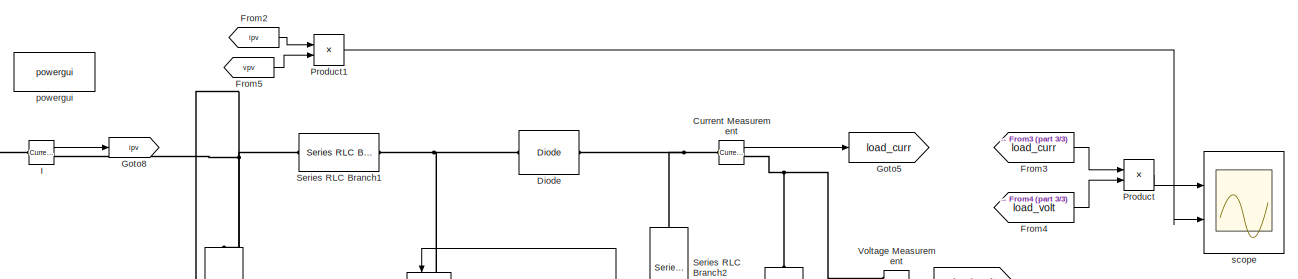
[diagram: root canvas - part 1/3, top center region]
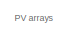
[diagram: root canvas - part 2/3, top left region]
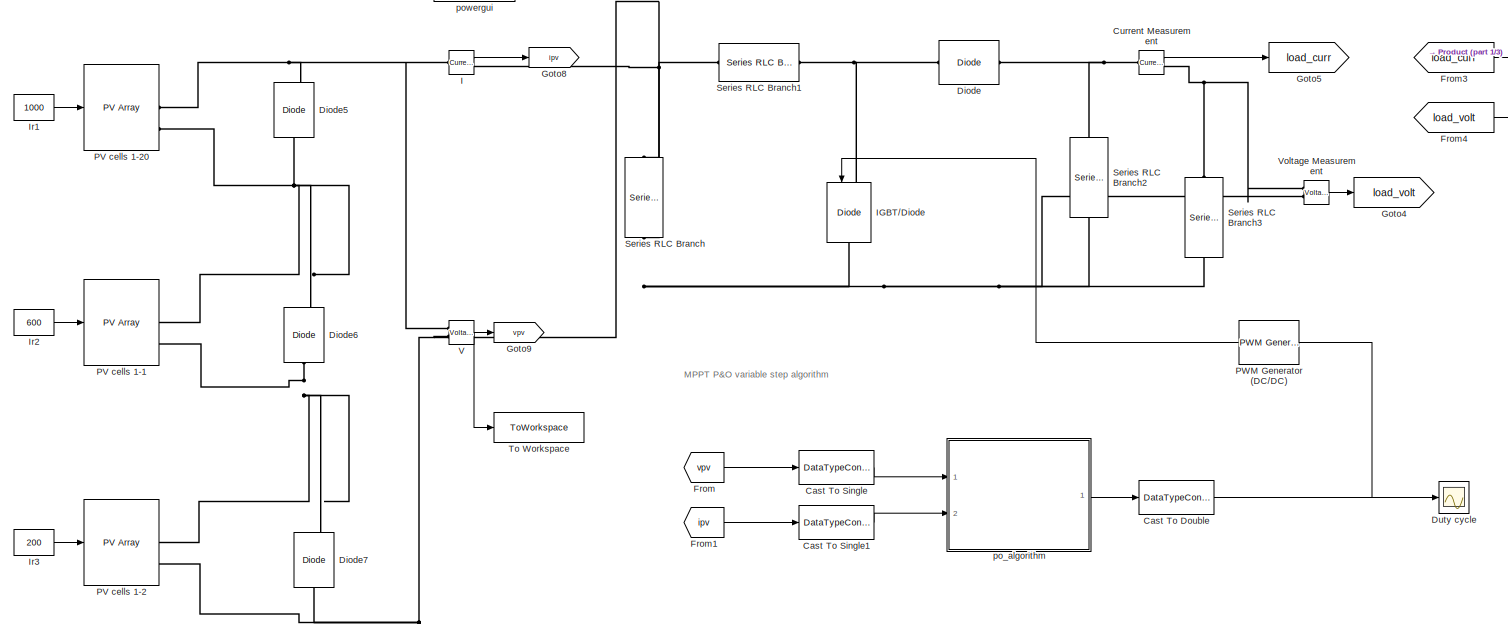
[diagram: root canvas - part 3/3, most of the canvas]
MODEL slx_27cc3cabecec
KIND model
CONFIG AbsTol = auto
CONFIG EnableMultiTasking = on
CONFIG FixedStep = 1e-6
CONFIG MaxStep = auto
CONFIG MinStep = auto
CONFIG RelTol = 1e-3
CONFIG SampleTimeConstraint = Unconstrained
CONFIG SolverName = FixedStepAuto
CONFIG StartTime = 0.0
CONFIG StopTime = 0.4
BLOCK [DataTypeConversion] Cast To Double
  OutDataTypeStr = double
  RndMeth = Floor
  SaturateOnIntegerOverflow = off
BLOCK [DataTypeConversion] Cast To Single
  OutDataTypeStr = single
  RndMeth = Floor
  SaturateOnIntegerOverflow = off
BLOCK [DataTypeConversion] Cast To Single1
  OutDataTypeStr = single
  RndMeth = Floor
  SaturateOnIntegerOverflow = off
BLOCK [Reference] Current Measurement  REF=spsCurrentMeasurementLib/Current Measurement
  Ports = [0, 1, 0, 0, 0, 1, 1]
  SourceBlock = spsCurrentMeasurementLib/Current Measurement
  SourceProductBaseCode = PS
  SourceType = Current Measurement
  UserDataPersistent = on
BLOCK [Reference] Diode  REF=spsDiodeLib/Diode
  Ports = [0, 0, 0, 0, 0, 1, 1]
  SourceBlock = spsDiodeLib/Diode
  SourceProductBaseCode = PS
  SourceType = Diode
BLOCK [Reference] Diode5  REF=spsDiodeLib/Diode
  NameLocation = right
  Ports = [0, 1, 0, 0, 0, 1, 1]
  SourceBlock = spsDiodeLib/Diode
  SourceProductBaseCode = PS
  SourceType = Diode
BLOCK [Reference] Diode6  REF=spsDiodeLib/Diode
  NameLocation = right
  Ports = [0, 1, 0, 0, 0, 1, 1]
  SourceBlock = spsDiodeLib/Diode
  SourceProductBaseCode = PS
  SourceType = Diode
BLOCK [Reference] Diode7  REF=spsDiodeLib/Diode
  NameLocation = right
  Ports = [0, 1, 0, 0, 0, 1, 1]
  SourceBlock = spsDiodeLib/Diode
  SourceProductBaseCode = PS
  SourceType = Diode
BLOCK [Scope] Duty cycle
  Floating = off
  NumInputPorts = 1
  Ports = [1]
  ScopeSpecificationString = Simulink.scopes.TimeScopeBlockCfg('CurrentConfiguration', extmgr.ConfigurationSet(extmgr.Configuration('Core','General UI',true),extmgr.Configuration('Core','Source UI',true),extmgr.Configuration('Sources','WiredSimulink',true),extmgr.Configuration('Visuals','Time Domain',true,'SerializedDisplays',{struct('MinYLimReal','0.33922','MaxYLimReal','0.94366','YLabelReal','','MinYLimMag','0.33922','MaxYL...<+1523ch>
BLOCK [From] From
  GotoTag = vpv
BLOCK [From] From1
  GotoTag = ipv
BLOCK [From] From2
  GotoTag = ipv
BLOCK [From] From3
  GotoTag = load_curr
BLOCK [From] From4
  GotoTag = load_volt
BLOCK [From] From5
  GotoTag = vpv
BLOCK [Goto] Goto4
  GotoTag = load_volt
BLOCK [Goto] Goto5
  GotoTag = load_curr
BLOCK [Goto] Goto8
  GotoTag = ipv
BLOCK [Goto] Goto9
  GotoTag = vpv
BLOCK [Reference] I  REF=spsCurrentMeasurementLib/Current Measurement
  Ports = [0, 1, 0, 0, 0, 1, 1]
  SourceBlock = spsCurrentMeasurementLib/Current Measurement
  SourceProductBaseCode = PS
  SourceType = Current Measurement
  UserDataPersistent = on
BLOCK [Reference] IGBT//Diode  REF=spsIGBTDiodeLib/IGBT//Diode
  NameLocation = left
  Ports = [1, 0, 0, 0, 0, 1, 1]
  SourceBlock = spsIGBTDiodeLib/IGBT//Diode
  SourceProductBaseCode = PS
  SourceType = IGBT/Diode
BLOCK [Constant] Ir1
  NameLocation = top
  Value = 1000
BLOCK [Constant] Ir2
  NameLocation = top
  Value = 600
BLOCK [Constant] Ir3
  NameLocation = top
  Value = 200
BLOCK [Reference] PV cells 1-1  REF=spsPVArrayLib/PV Array
  AttributesFormatString = (%<RobustCellTemperature> deg.C)
  Ports = [1, 1, 0, 0, 0, 0, 2]
  SourceBlock = spsPVArrayLib/PV Array
  SourceProductBaseCode = PS
  SourceType = PV array
BLOCK [Reference] PV cells 1-2  REF=spsPVArrayLib/PV Array
  AttributesFormatString = (%<RobustCellTemperature> deg.C)
  Ports = [1, 1, 0, 0, 0, 0, 2]
  SourceBlock = spsPVArrayLib/PV Array
  SourceProductBaseCode = PS
  SourceType = PV array
BLOCK [Reference] PV cells 1-20  REF=spsPVArrayLib/PV Array
  AttributesFormatString = (%<RobustCellTemperature> deg.C)
  Ports = [1, 1, 0, 0, 0, 0, 2]
  SourceBlock = spsPVArrayLib/PV Array
  SourceProductBaseCode = PS
  SourceType = PV array
BLOCK [Reference] PWM Generator (DC//DC)  REF=spsPWMGeneratorDCDCLib/PWM Generator
(DC-DC)
  NameLocation = top
  Ports = [1, 1]
  SourceBlock = spsPWMGeneratorDCDCLib/PWM Generator\n(DC-DC)
  SourceProductBaseCode = PS
  SourceType = PWM Generator (DC-DC)
BLOCK [Product] Product
  Ports = [2, 1]
BLOCK [Product] Product1
  Ports = [2, 1]
BLOCK [Reference] Series RLC Branch  REF=spsSeriesRLCBranchLib/Series RLC Branch
  NameLocation = left
  Ports = [0, 0, 0, 0, 0, 1, 1]
  SourceBlock = spsSeriesRLCBranchLib/Series RLC Branch
  SourceProductBaseCode = PS
  SourceType = Series RLC Branch
BLOCK [Reference] Series RLC Branch1  REF=spsSeriesRLCBranchLib/Series RLC Branch
  NameLocation = top
  Ports = [0, 0, 0, 0, 0, 1, 1]
  SourceBlock = spsSeriesRLCBranchLib/Series RLC Branch
  SourceProductBaseCode = PS
  SourceType = Series RLC Branch
BLOCK [Reference] Series RLC Branch2  REF=spsSeriesRLCBranchLib/Series RLC Branch
  NameLocation = left
  Ports = [0, 0, 0, 0, 0, 1, 1]
  SourceBlock = spsSeriesRLCBranchLib/Series RLC Branch
  SourceProductBaseCode = PS
  SourceType = Series RLC Branch
BLOCK [Reference] Series RLC Branch3  REF=spsSeriesRLCBranchLib/Series RLC Branch
  NameLocation = right
  Ports = [0, 0, 0, 0, 0, 1, 1]
  SourceBlock = spsSeriesRLCBranchLib/Series RLC Branch
  SourceProductBaseCode = PS
  SourceType = Series RLC Branch
BLOCK [ToWorkspace] To Workspace
  FixptAsFi = on
  MaxDataPoints = inf
  Ports = [1]
  SampleTime = -1
  SaveFormat = Timeseries
  VariableName = simout
BLOCK [Reference] V  REF=spsVoltageMeasurementLib/Voltage Measurement
  Ports = [0, 1, 0, 0, 0, 2]
  SourceBlock = spsVoltageMeasurementLib/Voltage Measurement
  SourceProductBaseCode = PS
  SourceType = Voltage Measurement
  UserDataPersistent = on
BLOCK [Reference] Voltage Measurement  REF=spsVoltageMeasurementLib/Voltage Measurement
  Ports = [0, 1, 0, 0, 0, 2]
  SourceBlock = spsVoltageMeasurementLib/Voltage Measurement
  SourceProductBaseCode = PS
  SourceType = Voltage Measurement
  UserDataPersistent = on
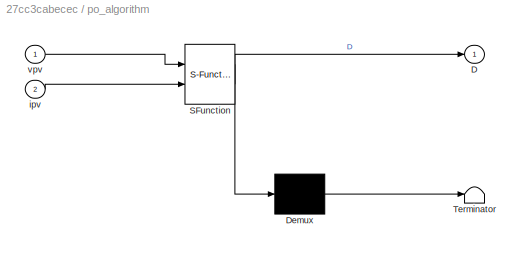
BLOCK [SubSystem] po_algorithm
  ErrorFcn = Stateflow.Translate.translate
  PermitHierarchicalResolution = ExplicitOnly
  Ports = [2, 1]
  RequestExecContextInheritance = off
  SFBlockType = MATLAB Function
  TreatAsAtomicUnit = on
BLOCK [Demux] po_algorithm/ Demux 
  Outputs = 1
  Ports = [1, 1]
BLOCK [S-Function] po_algorithm/ SFunction 
  EnableBusSupport = on
  FunctionName = sf_sfun
  PortCounts = [2 2]
  Ports = [2, 2]
  SFcnIsStateOwnerBlock = off
  SFunctionDeploymentMode = off
  Tag = Stateflow S-Function 2
BLOCK [Terminator] po_algorithm/ Terminator 
BLOCK [Outport] po_algorithm/D
BLOCK [Inport] po_algorithm/ipv
  Port = 2
BLOCK [Inport] po_algorithm/vpv
BLOCK [Reference] powergui  REF=spspowerguiLib/powergui
  Ports = []
  Priority = 1
  SourceBlock = spspowerguiLib/powergui
  SourceProductBaseCode = PS
  SourceType = PSB option menu block
BLOCK [Scope] scope
  Floating = off
  NumInputPorts = 2
  Ports = [2]
  ScopeSpecificationString = Simulink.scopes.TimeScopeBlockCfg('CurrentConfiguration', extmgr.ConfigurationSet(extmgr.Configuration('Core','General UI',true),extmgr.Configuration('Core','Source UI',true),extmgr.Configuration('Sources','WiredSimulink',true,'DataLoggingVariableName','ScopeData1'),extmgr.Configuration('Visuals','Time Domain',true,'SerializedDisplays',{struct('MinYLimReal','-5433.08476','MaxYLimReal','48897.76281...<+2370ch>
ANNOTATION (root): MPPT P&O variable step algorithm
ANNOTATION (root): PV arrays
NET Cast To Double:1 -> Duty cycle:1, PWM Generator (DC//DC):1
LINE Cast To Single1:1 -> po_algorithm:2
LINE Cast To Single:1 -> po_algorithm:1
LINE Current Measurement:1 -> Goto5:1
LINE From1:1 -> Cast To Single1:1
LINE From2:1 -> Product1:1
LINE From3:1 -> Product:1
LINE From4:1 -> Product:2
LINE From5:1 -> Product1:2
LINE From:1 -> Cast To Single:1
LINE I:1 -> Goto8:1
LINE Ir1:1 -> PV cells 1-20:1
LINE Ir2:1 -> PV cells 1-1:1
LINE Ir3:1 -> PV cells 1-2:1
LINE PWM Generator (DC//DC):1 -> IGBT//Diode:1
LINE Product1:1 -> scope:2
LINE Product:1 -> scope:1
NET V:1 -> Goto9:1, To Workspace:1
LINE Voltage Measurement:1 -> Goto4:1
LINE po_algorithm:1 -> Cast To Double:1
PNET net1: Current Measurement:LConn1 -- Diode:RConn1 -- Series RLC Branch2:LConn1
PNET net2: Current Measurement:RConn1 -- Series RLC Branch3:RConn1 -- Voltage Measurement:LConn1
PNET net3: Diode5:LConn1 -- Diode6:RConn1 -- PV cells 1-1:RConn1 -- PV cells 1-20:RConn2
PNET net4: Diode5:RConn1 -- I:LConn1 -- PV cells 1-20:RConn1 -- V:LConn1
PNET net5: Diode6:LConn1 -- Diode7:RConn1 -- PV cells 1-1:RConn2 -- PV cells 1-2:RConn1
PNET net6: Diode7:LConn1 -- IGBT//Diode:RConn1 -- PV cells 1-2:RConn2 -- Series RLC Branch2:RConn1 -- Series RLC Branch3:LConn1 -- Series RLC Branch:RConn1 -- V:LConn2 -- Voltage Measurement:LConn2
PNET net7: Diode:LConn1 -- IGBT//Diode:LConn1 -- Series RLC Branch1:LConn1
PNET net8: I:RConn1 -- Series RLC Branch1:RConn1 -- Series RLC Branch:LConn1
note: NET lines group one-source signal fan-out (src -> all destinations, sorted); 1:1 wires keep LINE; PNET lines group multi-terminal physical nets as a canonical sorted terminal list (undirected conserving connections); 2-terminal nets keep the pairwise PLINE form
CHART po_algorithm states=1 transitions=1
  STATE_LABEL 'eML_blk_kernel()'
  STATE_LABEL 'SCRIPT:\nfunction D = PO_algorithm(vpv, ipv)\n    Dinit =single(0.4);\n    Dmax = single(0.9);\n    Dmin = single(0.1);\n    \n    persistent Vold Pold Dold\n     \n    if isempty(Vold)\n        Vold = single(0);\n        Pold = single(0);\n        Dold = single(Dinit);\n    end\n    \n    P = single(vpv*ipv);\n    dV = vpv - Vold;\n    dP = P - Pold; \n    N = 6e-6; %6e-6 funziona bene\n    D_incr = single(N*abs(d...<+513ch>'
CHART  states=0 transitions=0
